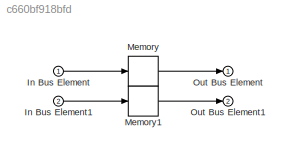
MODEL slx_c660bf918bfd
KIND model
CONFIG AbsTol = auto
CONFIG EnableMultiTasking = off
CONFIG FixedStep = 0.1
CONFIG MaxStep = auto
CONFIG MinStep = auto
CONFIG RelTol = 1e-3
CONFIG SampleTimeConstraint = Unconstrained
CONFIG SolverName = FixedStepDiscrete
CONFIG StartTime = 0.0
CONFIG StopTime = 10.0
BLOCK [Inport] In Bus Element
BLOCK [Inport] In Bus Element1
  Port = 2
BLOCK [Memory] Memory
  LinearizeAsDelay = on
  LinearizeMemory = on
BLOCK [Memory] Memory1
  LinearizeAsDelay = on
  LinearizeMemory = on
BLOCK [Outport] Out Bus Element
BLOCK [Outport] Out Bus Element1
  Port = 2
LINE In Bus Element1:1 -> Memory1:1
LINE In Bus Element:1 -> Memory:1
LINE Memory1:1 -> Out Bus Element1:1
LINE Memory:1 -> Out Bus Element:1
